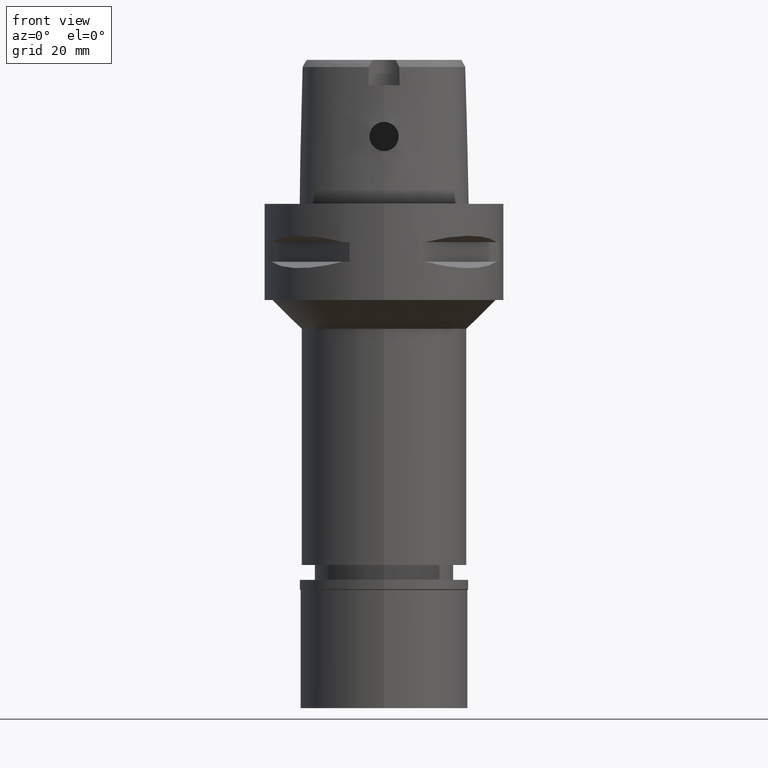
[diagram: clean part render]
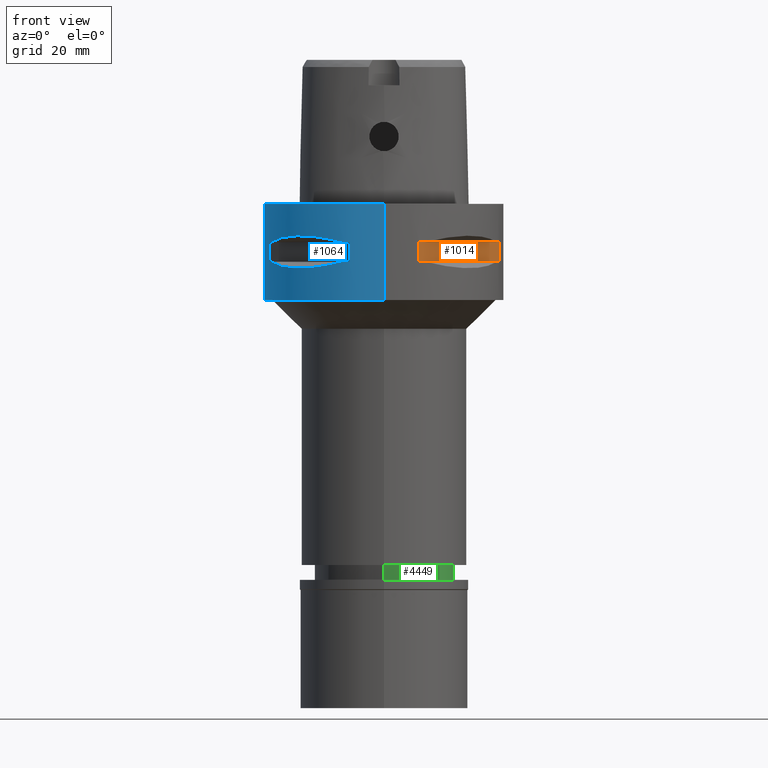
[diagram: same view with three faces highlighted in distinct colors, each labeled with its STEP entity id]
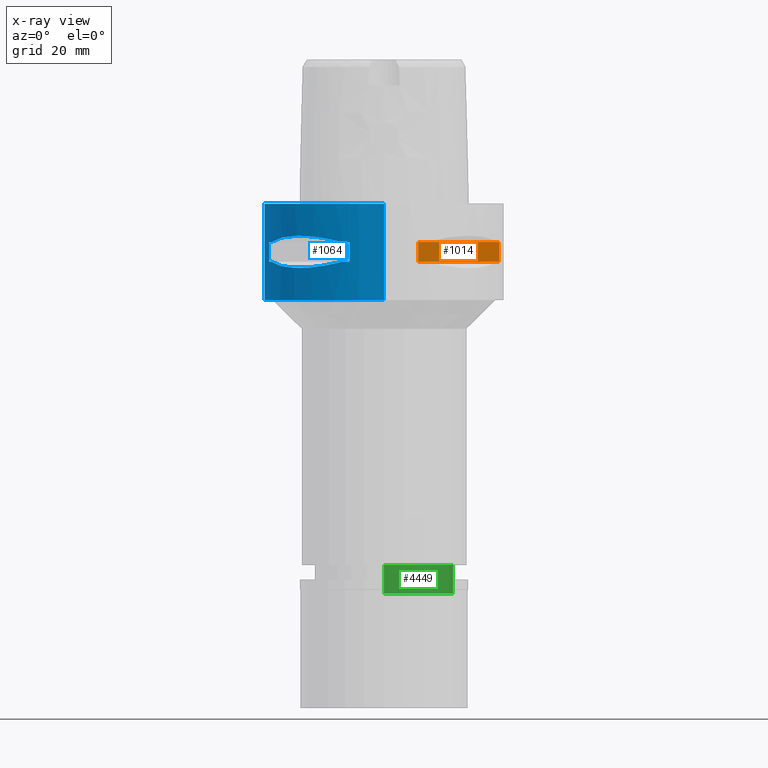
[diagram: x-ray of the same camera — body ghosted, the three highlighted faces saturated]
A machine part, front view with three faces highlighted in distinct colors.
The next image is the same camera in x-ray (body ghosted, the three faces saturated) — at least one of them is partly hidden behind the body in this view.
Their STEP definitions:

[orange] entity #1014 — the highlighted planar face has unit normal (-0.7071, 0.7071, 0).
#19 = DIRECTION ( 'NONE',  ( 0.0000000000000000000, 0.0000000000000000000, 1.000000000000000000 ) ) ;
#159 = AXIS2_PLACEMENT_3D ( 'NONE', #3375, #425, #19 ) ;
#295 = DIRECTION ( 'NONE',  ( 0.0000000000000000000, 0.0000000000000000000, -1.000000000000000000 ) ) ;
#352 = EDGE_CURVE ( 'NONE', #3351, #3797, #879, .T. ) ;
#376 = PLANE ( 'NONE',  #159 ) ;
#399 = FACE_OUTER_BOUND ( 'NONE', #3069, .T. ) ;
#425 = DIRECTION ( 'NONE',  ( -0.7071067811865475727, 0.7071067811865475727, 0.0000000000000000000 ) ) ;
#470 = VECTOR ( 'NONE', #3344, 1000.000000000000000 ) ;
#729 = CARTESIAN_POINT ( 'NONE',  ( 23.95277699797999915, -7.159921374230999724, -7.950000000000000178 ) ) ;
#852 = DIRECTION ( 'NONE',  ( 0.7071067811865474617, 0.7071067811865474617, 0.0000000000000000000 ) ) ;
#879 = LINE ( 'NONE', #3498, #2348 ) ;
#999 = CARTESIAN_POINT ( 'NONE',  ( 23.95277699797999915, -7.159921374230999724, -12.05000000000000071 ) ) ;
#1014 = ADVANCED_FACE ( 'NONE', ( #399 ), #376, .F. ) ;
#1768 = ORIENTED_EDGE ( 'NONE', *, *, #4234, .T. ) ;
#2050 = ORIENTED_EDGE ( 'NONE', *, *, #4154, .T. ) ;
#2321 = CARTESIAN_POINT ( 'NONE',  ( 7.159921374235000080, -23.95277699797999915, -7.950000000000000178 ) ) ;
#2348 = VECTOR ( 'NONE', #852, 1000.000000000000114 ) ;
#2385 = CARTESIAN_POINT ( 'NONE',  ( 7.159921374230999724, -23.95277699797999915, -12.05000000000000071 ) ) ;
#2468 = LINE ( 'NONE', #999, #470 ) ;
#2740 = DIRECTION ( 'NONE',  ( 0.7071067811865474617, 0.7071067811865474617, 0.0000000000000000000 ) ) ;
#2833 = VECTOR ( 'NONE', #2740, 1000.000000000000114 ) ;
#2850 = EDGE_CURVE ( 'NONE', #4442, #3491, #4199, .T. ) ;
#2856 = ORIENTED_EDGE ( 'NONE', *, *, #352, .T. ) ;
#2921 = VECTOR ( 'NONE', #295, 1000.000000000000000 ) ;
#3069 = EDGE_LOOP ( 'NONE', ( #3834, #1768, #2856, #2050 ) ) ;
#3344 = DIRECTION ( 'NONE',  ( 0.0000000000000000000, 0.0000000000000000000, 1.000000000000000000 ) ) ;
#3351 = VERTEX_POINT ( 'NONE', #2385 ) ;
#3375 = CARTESIAN_POINT ( 'NONE',  ( 26.16295090389999700, -4.949747468305999654, -7.950000000000000178 ) ) ;
#3491 = VERTEX_POINT ( 'NONE', #729 ) ;
#3498 = CARTESIAN_POINT ( 'NONE',  ( 7.159921374230999724, -23.95277699797999915, -12.05000000000000071 ) ) ;
#3607 = CARTESIAN_POINT ( 'NONE',  ( 7.159921374230999724, -23.95277699797999915, -7.950000000000000178 ) ) ;
#3797 = VERTEX_POINT ( 'NONE', #4230 ) ;
#3834 = ORIENTED_EDGE ( 'NONE', *, *, #2850, .F. ) ;
#3848 = CARTESIAN_POINT ( 'NONE',  ( 7.159921374230999724, -23.95277699797999915, -7.950000000000000178 ) ) ;
#4061 = LINE ( 'NONE', #3607, #2921 ) ;
#4154 = EDGE_CURVE ( 'NONE', #3797, #3491, #2468, .T. ) ;
#4199 = LINE ( 'NONE', #3848, #2833 ) ;
#4230 = CARTESIAN_POINT ( 'NONE',  ( 23.95277699797999915, -7.159921374235000080, -12.05000000000000071 ) ) ;
#4234 = EDGE_CURVE ( 'NONE', #4442, #3351, #4061, .T. ) ;
#4442 = VERTEX_POINT ( 'NONE', #2321 ) ;

[blue] entity #1064 — the highlighted cylindrical surface (partial cylindrical patch) has radius 25 mm, axis along (0, 0, -1).
#18 = DIRECTION ( 'NONE',  ( -0.9581110799190402094, 0.2863968549694120291, 0.0000000000000000000 ) ) ;
#88 = DIRECTION ( 'NONE',  ( 0.0000000000000000000, -1.000000000000000000, 0.0000000000000000000 ) ) ;
#105 = VECTOR ( 'NONE', #4522, 1000.000000000000000 ) ;
#127 = DIRECTION ( 'NONE',  ( 0.0000000000000000000, 0.0000000000000000000, -1.000000000000000000 ) ) ;
#144 = VERTEX_POINT ( 'NONE', #4787 ) ;
#148 = VERTEX_POINT ( 'NONE', #328 ) ;
#180 = VECTOR ( 'NONE', #1177, 1000.000000000000000 ) ;
#206 = CARTESIAN_POINT ( 'NONE',  ( -7.159921374235000080, -23.95277699797999915, -12.05000000000000071 ) ) ;
#249 = CARTESIAN_POINT ( 'NONE',  ( -20.77616787492826944, 13.90573822668830140, -13.10257122103331184 ) ) ;
#279 = CARTESIAN_POINT ( 'NONE',  ( -20.56020460721916265, 14.22535762329778564, -13.14488865845300047 ) ) ;
#283 = CARTESIAN_POINT ( 'NONE',  ( -21.05082155772163333, -13.48572973711064193, -13.04323036965292637 ) ) ;
#305 = ORIENTED_EDGE ( 'NONE', *, *, #1485, .T. ) ;
#328 = CARTESIAN_POINT ( 'NONE',  ( -7.159921374230999724, -23.95277699797999915, -7.950000000000000178 ) ) ;
#349 = CARTESIAN_POINT ( 'NONE',  ( -20.97251445226615019, 13.60713573002994004, -13.06082541678091324 ) ) ;
#353 = ORIENTED_EDGE ( 'NONE', *, *, #3975, .F. ) ;
#357 = EDGE_CURVE ( 'NONE', #1636, #4086, #4311, .T. ) ;
#395 = CARTESIAN_POINT ( 'NONE',  ( -22.00752022560863352, 11.99636231257077057, -7.175618606723545234 ) ) ;
#397 = EDGE_CURVE ( 'NONE', #3716, #1444, #1362, .T. ) ;
#398 = LINE ( 'NONE', #2286, #105 ) ;
#412 = CIRCLE ( 'NONE', #2218, 24.99999999999999645 ) ;
#483 = CARTESIAN_POINT ( 'NONE',  ( 0.0000000000000000000, 1.282205198706999922E-14, -12.05000000000000071 ) ) ;
#490 = CARTESIAN_POINT ( 'NONE',  ( 0.0000000000000000000, 1.282205198706999922E-14, 4.700000000000000178 ) ) ;
#527 = CARTESIAN_POINT ( 'NONE',  ( -16.43106916206559021, 18.92421359260760028, -13.37747608848198588 ) ) ;
#532 = CARTESIAN_POINT ( 'NONE',  ( -23.45715880140000209, -8.646484890756999775, -12.05000000000000071 ) ) ;
#555 = CARTESIAN_POINT ( 'NONE',  ( -13.53433973752450470, 21.01958685664151361, -13.05032380590220775 ) ) ;
#608 = CARTESIAN_POINT ( 'NONE',  ( -21.09754014382098930, -13.41274673326371136, -13.03250796600744721 ) ) ;
#620 = DIRECTION ( 'NONE',  ( 0.0000000000000000000, 0.0000000000000000000, 1.000000000000000000 ) ) ;
#634 = CARTESIAN_POINT ( 'NONE',  ( -13.60713573003076249, -20.97251445226584110, -13.06082541678113174 ) ) ;
#664 = CARTESIAN_POINT ( 'NONE',  ( -13.74471461761470792, -20.88268233906292437, -13.08031795579734791 ) ) ;
#674 = ORIENTED_EDGE ( 'NONE', *, *, #397, .T. ) ;
#679 = VERTEX_POINT ( 'NONE', #1922 ) ;
#699 = AXIS2_PLACEMENT_3D ( 'NONE', #3840, #2284, #1183 ) ;
#714 = CIRCLE ( 'NONE', #2995, 25.00000000000000000 ) ;
#719 = CARTESIAN_POINT ( 'NONE',  ( -23.95277699797999915, 7.159921374230999724, -7.950000000000000178 ) ) ;
#721 = DIRECTION ( 'NONE',  ( 0.0000000000000000000, 0.0000000000000000000, 1.000000000000000000 ) ) ;
#773 = DIRECTION ( 'NONE',  ( 0.0000000000000000000, 0.0000000000000000000, 1.000000000000000000 ) ) ;
#786 = CIRCLE ( 'NONE', #3383, 24.99999999999999645 ) ;
#788 = CARTESIAN_POINT ( 'NONE',  ( -8.646484890751999330, -23.45715880140000209, -7.949999999998999201 ) ) ;
#790 = DIRECTION ( 'NONE',  ( -0.9382863520558295534, 0.3458593956303108730, 0.0000000000000000000 ) ) ;
#821 = ORIENTED_EDGE ( 'NONE', *, *, #3898, .T. ) ;
#823 = CARTESIAN_POINT ( 'NONE',  ( -8.646484890751999330, 23.45715880140000209, -7.949999999998999201 ) ) ;
#856 = DIRECTION ( 'NONE',  ( 0.0000000000000000000, 0.0000000000000000000, -1.000000000000000000 ) ) ;
#864 = EDGE_CURVE ( 'NONE', #2124, #4084, #2219, .T. ) ;
#906 = CARTESIAN_POINT ( 'NONE',  ( 0.0000000000000000000, 1.282205198706999922E-14, -20.00000000000000000 ) ) ;
#983 = CARTESIAN_POINT ( 'NONE',  ( -13.67544437571023153, -20.92801700160370970, -13.07054629644085786 ) ) ;
#991 = B_SPLINE_CURVE_WITH_KNOTS ( 'NONE', 3,
 ( #2796, #4651, #2109, #3168, #1293, #3613, #2012, #3519, #555, #3140, #2406, #527, #2031, #3544, #3936, #279, #249, #2183, #1744, #1453, #349, #4808, #2494, #1083 ),
 .UNSPECIFIED., .F., .F.,
 ( 4, 1, 1, 1, 1, 1, 2, 2, 2, 1, 1, 1, 1, 1, 2, 2, 4 ),
 ( 0.0000000000000000000, 0.1249999999999998612, 0.1874999999999998890, 0.2187499999999998057, 0.2343749999999998057, 0.2421875000000000000, 0.2460937500000001110, 0.2500000000000002220, 0.5000000000000009992, 0.6250000000000014433, 0.6875000000000015543, 0.7187500000000016653, 0.7343750000000015543, 0.7421875000000013323, 0.7460937500000013323, 0.7500000000000012212, 1.000000000000000000 ),
 .UNSPECIFIED. ) ;
#1011 = CARTESIAN_POINT ( 'NONE',  ( 0.0000000000000000000, 1.282205198706999922E-14, -7.950000000000000178 ) ) ;
#1013 = CARTESIAN_POINT ( 'NONE',  ( -18.92421359266165126, -16.43106916201666934, -13.37747608848409264 ) ) ;
#1038 = VERTEX_POINT ( 'NONE', #1511 ) ;
#1055 = ORIENTED_EDGE ( 'NONE', *, *, #1794, .T. ) ;
#1064 = ADVANCED_FACE ( 'NONE', ( #3008, #3428, #2387 ), #4236, .T. ) ;
#1083 = CARTESIAN_POINT ( 'NONE',  ( -23.45715880140000209, 8.646484890751999330, -12.05000000000000071 ) ) ;
#1093 = CARTESIAN_POINT ( 'NONE',  ( 0.0000000000000000000, 1.282205198706999922E-14, -7.950000000000000178 ) ) ;
#1116 = CARTESIAN_POINT ( 'NONE',  ( -11.99636231264436859, -22.00752022556849141, -7.175618606703324964 ) ) ;
#1140 = CARTESIAN_POINT ( 'NONE',  ( -16.42437865151179111, -18.93096040781557221, -6.622496303226940384 ) ) ;
#1177 = DIRECTION ( 'NONE',  ( 0.0000000000000000000, 0.0000000000000000000, -1.000000000000000000 ) ) ;
#1183 = DIRECTION ( 'NONE',  ( -0.3458593956303108730, 0.9382863520558295534, 0.0000000000000000000 ) ) ;
#1216 = CARTESIAN_POINT ( 'NONE',  ( 0.0000000000000000000, 25.00000000000000000, 0.0000000000000000000 ) ) ;
#1293 = CARTESIAN_POINT ( 'NONE',  ( -12.89853354821533493, 21.41803043592779687, -12.95342092614030882 ) ) ;
#1296 = CARTESIAN_POINT ( 'NONE',  ( -23.13678124605149833, -9.515641234297431694, -12.27403800212630891 ) ) ;
#1319 = ORIENTED_EDGE ( 'NONE', *, *, #3041, .T. ) ;
#1333 = VECTOR ( 'NONE', #2958, 1000.000000000000000 ) ;
#1343 = VERTEX_POINT ( 'NONE', #4801 ) ;
#1353 = CARTESIAN_POINT ( 'NONE',  ( -14.22535762327708397, -20.56020460723788901, -13.14488865845220289 ) ) ;
#1362 = B_SPLINE_CURVE_WITH_KNOTS ( 'NONE', 3,
 ( #2384, #2311, #2679, #1581, #3076, #1961, #3472, #395, #1894, #3402 ),
 .UNSPECIFIED., .F., .F.,
 ( 4, 2, 2, 2, 4 ),
 ( 0.0000000000000000000, 0.2500000000000000000, 0.5000000000000000000, 0.7500000000000000000, 1.000000000000000000 ),
 .UNSPECIFIED. ) ;
#1377 = CARTESIAN_POINT ( 'NONE',  ( -16.07509500017260251, -19.18226349640280048, -13.33749867751863327 ) ) ;
#1434 = CARTESIAN_POINT ( 'NONE',  ( 0.0000000000000000000, 1.282205198706999922E-14, -12.05000000000000071 ) ) ;
#1444 = VERTEX_POINT ( 'NONE', #2665 ) ;
#1445 = LINE ( 'NONE', #4007, #3941 ) ;
#1453 = CARTESIAN_POINT ( 'NONE',  ( -20.95817024473769052, 13.62920640916783910, -13.06397973560678594 ) ) ;
#1456 = CARTESIAN_POINT ( 'NONE',  ( -23.95277699797999915, 7.159921374230999724, -12.05000000000000071 ) ) ;
#1485 = EDGE_CURVE ( 'NONE', #4247, #3716, #786, .T. ) ;
#1511 = CARTESIAN_POINT ( 'NONE',  ( 0.0000000000000000000, -25.00000000000000000, 0.0000000000000000000 ) ) ;
#1534 = ORIENTED_EDGE ( 'NONE', *, *, #3153, .F. ) ;
#1540 = CARTESIAN_POINT ( 'NONE',  ( 0.0000000000000000000, 25.00000000000000000, 0.0000000000000000000 ) ) ;
#1544 = CARTESIAN_POINT ( 'NONE',  ( -18.93096040781556866, -16.42437865151179821, -6.622505547253060953 ) ) ;
#1555 = CARTESIAN_POINT ( 'NONE',  ( 0.0000000000000000000, 1.282205198706999922E-14, -12.05000000000000071 ) ) ;
#1577 = DIRECTION ( 'NONE',  ( -0.9382863520558295534, -0.3458593956303108730, 0.0000000000000000000 ) ) ;
#1581 = CARTESIAN_POINT ( 'NONE',  ( -15.02693924553806504, 20.06077645870042403, -6.733132781285451784 ) ) ;
#1622 = DIRECTION ( 'NONE',  ( 0.0000000000000000000, -1.000000000000000000, 0.0000000000000000000 ) ) ;
#1623 = DIRECTION ( 'NONE',  ( 0.0000000000000000000, 1.000000000000000000, 0.0000000000000000000 ) ) ;
#1636 = VERTEX_POINT ( 'NONE', #4519 ) ;
#1654 = VERTEX_POINT ( 'NONE', #3330 ) ;
#1666 = EDGE_CURVE ( 'NONE', #144, #4701, #4809, .T. ) ;
#1685 = CARTESIAN_POINT ( 'NONE',  ( -23.45715880140000209, 8.646484890751999330, -12.05000000000000071 ) ) ;
#1708 = DIRECTION ( 'NONE',  ( -0.2863968549694120291, -0.9581110799190402094, 0.0000000000000000000 ) ) ;
#1744 = CARTESIAN_POINT ( 'NONE',  ( -20.92801700160071476, 13.67544437571354088, -13.07054629644098043 ) ) ;
#1774 = CARTESIAN_POINT ( 'NONE',  ( -21.00321793043546847, -13.55971422200801157, -13.05400030967367364 ) ) ;
#1794 = EDGE_CURVE ( 'NONE', #1038, #2124, #2590, .T. ) ;
#1826 = VECTOR ( 'NONE', #127, 1000.000000000000000 ) ;
#1827 = DIRECTION ( 'NONE',  ( 0.0000000000000000000, 0.0000000000000000000, -1.000000000000000000 ) ) ;
#1848 = ORIENTED_EDGE ( 'NONE', *, *, #864, .T. ) ;
#1889 = AXIS2_PLACEMENT_3D ( 'NONE', #1011, #4402, #4765 ) ;
#1894 = CARTESIAN_POINT ( 'NONE',  ( -22.82437128824117778, 10.36318218117757084, -7.507495686413086844 ) ) ;
#1904 = CARTESIAN_POINT ( 'NONE',  ( -23.45715880140000209, -8.646484890751999330, -7.949999999998999201 ) ) ;
#1922 = CARTESIAN_POINT ( 'NONE',  ( -23.95277699797999915, -7.159921374230999724, -12.05000000000000071 ) ) ;
#1956 = LINE ( 'NONE', #2331, #180 ) ;
#1961 = CARTESIAN_POINT ( 'NONE',  ( -18.93096040785499667, 16.42437865147239506, -6.622496303240421156 ) ) ;
#1975 = EDGE_CURVE ( 'NONE', #1654, #148, #3309, .T. ) ;
#1993 = CARTESIAN_POINT ( 'NONE',  ( -23.95277699797999915, -7.159921374235000080, -7.950000000000000178 ) ) ;
#2005 = CARTESIAN_POINT ( 'NONE',  ( 0.0000000000000000000, 1.282205198706999922E-14, -7.950000000000000178 ) ) ;
#2012 = CARTESIAN_POINT ( 'NONE',  ( -13.41274673326356393, 21.09754014382244236, -13.03250796600796413 ) ) ;
#2031 = CARTESIAN_POINT ( 'NONE',  ( -18.30096971346384294, 17.05439749819285566, -13.37751056790112258 ) ) ;
#2097 = VERTEX_POINT ( 'NONE', #2656 ) ;
#2109 = CARTESIAN_POINT ( 'NONE',  ( -10.78455809744490068, 22.58788056562654489, -12.56798337782910480 ) ) ;
#2112 = CARTESIAN_POINT ( 'NONE',  ( -13.90573822667720982, -20.77616787493829875, -13.10257122103289262 ) ) ;
#2124 = VERTEX_POINT ( 'NONE', #1216 ) ;
#2133 = ORIENTED_EDGE ( 'NONE', *, *, #2506, .T. ) ;
#2141 = CARTESIAN_POINT ( 'NONE',  ( -12.03062603421342125, -21.99328990740118428, -12.83394786307044555 ) ) ;
#2164 = CARTESIAN_POINT ( 'NONE',  ( -21.01958685664054372, -13.53433973752400377, -13.05032380590162511 ) ) ;
#2183 = CARTESIAN_POINT ( 'NONE',  ( -20.88268233905774096, 13.74471461762043489, -13.08031795579756462 ) ) ;
#2189 = DIRECTION ( 'NONE',  ( 0.0000000000000000000, 0.0000000000000000000, -1.000000000000000000 ) ) ;
#2215 = CIRCLE ( 'NONE', #3866, 25.00000000000001066 ) ;
#2218 = AXIS2_PLACEMENT_3D ( 'NONE', #483, #3161, #1708 ) ;
#2219 = LINE ( 'NONE', #1540, #2276 ) ;
#2227 = ORIENTED_EDGE ( 'NONE', *, *, #3737, .F. ) ;
#2254 = VERTEX_POINT ( 'NONE', #1993 ) ;
#2276 = VECTOR ( 'NONE', #1827, 1000.000000000000000 ) ;
#2284 = DIRECTION ( 'NONE',  ( 0.0000000000000000000, 0.0000000000000000000, -1.000000000000000000 ) ) ;
#2285 = EDGE_CURVE ( 'NONE', #4084, #2097, #714, .T. ) ;
#2286 = CARTESIAN_POINT ( 'NONE',  ( -23.95277699797999915, -7.159921374230999724, -7.950000000000000178 ) ) ;
#2291 = CARTESIAN_POINT ( 'NONE',  ( -10.36318218122984902, -22.82437128822189010, -7.507495686399605184 ) ) ;
#2303 = VERTEX_POINT ( 'NONE', #206 ) ;
#2311 = CARTESIAN_POINT ( 'NONE',  ( -10.36314631865473856, 22.82438450743641667, -7.507504930511911923 ) ) ;
#2331 = CARTESIAN_POINT ( 'NONE',  ( -7.159921374230999724, 23.95277699797999915, -7.950000000000000178 ) ) ;
#2383 = ORIENTED_EDGE ( 'NONE', *, *, #3754, .T. ) ;
#2384 = CARTESIAN_POINT ( 'NONE',  ( -8.646484890751999330, 23.45715880140000209, -7.949999999998999201 ) ) ;
#2387 = FACE_BOUND ( 'NONE', #2599, .T. ) ;
#2388 = EDGE_CURVE ( 'NONE', #4035, #1343, #4571, .T. ) ;
#2406 = CARTESIAN_POINT ( 'NONE',  ( -15.06560254765459739, 20.02826730455512561, -13.27075471794606543 ) ) ;
#2494 = CARTESIAN_POINT ( 'NONE',  ( -22.81626994450270374, 10.38516041961251979, -12.49816953212508963 ) ) ;
#2499 = CARTESIAN_POINT ( 'NONE',  ( -20.02826730454556170, -15.06560254766883666, -13.27075471794798744 ) ) ;
#2506 = EDGE_CURVE ( 'NONE', #1444, #4701, #2215, .T. ) ;
#2532 = CARTESIAN_POINT ( 'NONE',  ( -10.38516041956038016, -22.81626994452193458, -12.49816953211165860 ) ) ;
#2567 = ORIENTED_EDGE ( 'NONE', *, *, #3462, .F. ) ;
#2590 = CIRCLE ( 'NONE', #4321, 25.00000000000000000 ) ;
#2599 = EDGE_LOOP ( 'NONE', ( #4322, #2772, #821, #3993, #2383, #1534, #2787, #3158 ) ) ;
#2656 = CARTESIAN_POINT ( 'NONE',  ( 0.0000000000000000000, -25.00000000000000000, -20.00000000000000000 ) ) ;
#2665 = CARTESIAN_POINT ( 'NONE',  ( -23.45715880140000209, 8.646484890751999330, -7.949999999998999201 ) ) ;
#2673 = CIRCLE ( 'NONE', #3696, 25.00000000000001066 ) ;
#2679 = CARTESIAN_POINT ( 'NONE',  ( -11.99631184317912869, 22.00754773654352903, -7.175632472871786405 ) ) ;
#2772 = ORIENTED_EDGE ( 'NONE', *, *, #4220, .F. ) ;
#2787 = ORIENTED_EDGE ( 'NONE', *, *, #3678, .T. ) ;
#2796 = CARTESIAN_POINT ( 'NONE',  ( -8.646484890756999775, 23.45715880140000209, -12.05000000000000071 ) ) ;
#2840 = LINE ( 'NONE', #3906, #1826 ) ;
#2882 = CARTESIAN_POINT ( 'NONE',  ( -8.646484890751999330, -23.45715880140000209, -12.05000000000000071 ) ) ;
#2949 = ORIENTED_EDGE ( 'NONE', *, *, #2285, .T. ) ;
#2950 = CARTESIAN_POINT ( 'NONE',  ( -7.159921374235000080, 23.95277699797999915, -7.950000000000000178 ) ) ;
#2958 = DIRECTION ( 'NONE',  ( 0.0000000000000000000, 0.0000000000000000000, 1.000000000000000000 ) ) ;
#2995 = AXIS2_PLACEMENT_3D ( 'NONE', #906, #3501, #1623 ) ;
#3008 = FACE_OUTER_BOUND ( 'NONE', #3070, .T. ) ;
#3041 = EDGE_CURVE ( 'NONE', #144, #4078, #3475, .T. ) ;
#3070 = EDGE_LOOP ( 'NONE', ( #2949, #353, #1055, #1848 ) ) ;
#3076 = CARTESIAN_POINT ( 'NONE',  ( -16.42437865147239506, 18.93096040785500733, -6.622505547239580181 ) ) ;
#3112 = ORIENTED_EDGE ( 'NONE', *, *, #1666, .F. ) ;
#3120 = DIRECTION ( 'NONE',  ( 0.0000000000000000000, 0.0000000000000000000, -1.000000000000000000 ) ) ;
#3134 = CARTESIAN_POINT ( 'NONE',  ( -23.45715880140000209, -8.646484890756999775, -12.05000000000000071 ) ) ;
#3140 = CARTESIAN_POINT ( 'NONE',  ( -13.55971422200900811, 21.00321793043610441, -13.05400030967432023 ) ) ;
#3153 = EDGE_CURVE ( 'NONE', #2254, #679, #398, .T. ) ;
#3158 = ORIENTED_EDGE ( 'NONE', *, *, #4681, .T. ) ;
#3161 = DIRECTION ( 'NONE',  ( 0.0000000000000000000, 0.0000000000000000000, -1.000000000000000000 ) ) ;
#3168 = CARTESIAN_POINT ( 'NONE',  ( -12.20403021317230241, 21.82791133048917587, -12.83722430138601212 ) ) ;
#3182 = CARTESIAN_POINT ( 'NONE',  ( 0.0000000000000000000, 25.00000000000000000, -20.00000000000000000 ) ) ;
#3276 = CARTESIAN_POINT ( 'NONE',  ( -17.05439749816580886, -18.30096971348830692, -13.37751056790007809 ) ) ;
#3299 = EDGE_LOOP ( 'NONE', ( #2133, #3112, #1319, #2567, #3922, #2227, #305, #674 ) ) ;
#3309 = CIRCLE ( 'NONE', #1889, 25.00000000000001066 ) ;
#3324 = CIRCLE ( 'NONE', #4550, 24.99999999999999645 ) ;
#3330 = CARTESIAN_POINT ( 'NONE',  ( -8.646484890751999330, -23.45715880140000209, -7.949999999998999201 ) ) ;
#3340 = CARTESIAN_POINT ( 'NONE',  ( -20.06077645874711379, -15.02693924547571847, -6.733132781305682713 ) ) ;
#3383 = AXIS2_PLACEMENT_3D ( 'NONE', #2005, #3513, #4666 ) ;
#3394 = CARTESIAN_POINT ( 'NONE',  ( 0.0000000000000000000, 1.282205198706999922E-14, -7.950000000000000178 ) ) ;
#3402 = CARTESIAN_POINT ( 'NONE',  ( -23.45715880140000209, 8.646484890751999330, -7.949999999998999201 ) ) ;
#3428 = FACE_BOUND ( 'NONE', #3299, .T. ) ;
#3462 = EDGE_CURVE ( 'NONE', #1636, #4078, #991, .T. ) ;
#3472 = CARTESIAN_POINT ( 'NONE',  ( -20.06074199769975763, 15.02698525043419231, -6.733118915137212390 ) ) ;
#3475 = CIRCLE ( 'NONE', #4485, 24.99999999999999645 ) ;
#3501 = DIRECTION ( 'NONE',  ( 0.0000000000000000000, 0.0000000000000000000, 1.000000000000000000 ) ) ;
#3513 = DIRECTION ( 'NONE',  ( 0.0000000000000000000, 0.0000000000000000000, 1.000000000000000000 ) ) ;
#3519 = CARTESIAN_POINT ( 'NONE',  ( -13.48572973711087464, 21.05082155772280572, -13.04323036965348237 ) ) ;
#3534 = CARTESIAN_POINT ( 'NONE',  ( -23.45715880140000209, -8.646484890751999330, -7.949999999998999201 ) ) ;
#3544 = CARTESIAN_POINT ( 'NONE',  ( -19.18226349636000450, 16.07509500021993532, -13.33749867752047003 ) ) ;
#3593 = CARTESIAN_POINT ( 'NONE',  ( -21.82791133048418786, -12.20403021317722292, -12.83722430138600323 ) ) ;
#3613 = CARTESIAN_POINT ( 'NONE',  ( -13.24197703503168100, 21.20561591939891599, -13.00691327926142193 ) ) ;
#3646 = CARTESIAN_POINT ( 'NONE',  ( -13.62920640916616577, -20.95817024473919687, -13.06397973560672554 ) ) ;
#3678 = EDGE_CURVE ( 'NONE', #2254, #4118, #3324, .T. ) ;
#3696 = AXIS2_PLACEMENT_3D ( 'NONE', #1555, #3793, #1577 ) ;
#3716 = VERTEX_POINT ( 'NONE', #823 ) ;
#3729 = CARTESIAN_POINT ( 'NONE',  ( -15.02698525050126754, -20.06074199764948673, -6.733118915116992120 ) ) ;
#3737 = EDGE_CURVE ( 'NONE', #4247, #4086, #1956, .T. ) ;
#3754 = EDGE_CURVE ( 'NONE', #4035, #679, #2673, .T. ) ;
#3793 = DIRECTION ( 'NONE',  ( 0.0000000000000000000, 0.0000000000000000000, -1.000000000000000000 ) ) ;
#3840 = CARTESIAN_POINT ( 'NONE',  ( 0.0000000000000000000, 1.282205198706999922E-14, -12.05000000000000071 ) ) ;
#3845 = B_SPLINE_CURVE_WITH_KNOTS ( 'NONE', 3,
 ( #1904, #4145, #4125, #3340, #1544, #1140, #3729, #1116, #2291, #788 ),
 .UNSPECIFIED., .F., .F.,
 ( 4, 2, 2, 2, 4 ),
 ( 0.0000000000000000000, 0.2500000000000001665, 0.5000000000000003331, 0.7500000000000001110, 1.000000000000000000 ),
 .UNSPECIFIED. ) ;
#3852 = AXIS2_PLACEMENT_3D ( 'NONE', #490, #3120, #88 ) ;
#3866 = AXIS2_PLACEMENT_3D ( 'NONE', #1093, #721, #790 ) ;
#3884 = CARTESIAN_POINT ( 'NONE',  ( -7.159921374230999724, 23.95277699797999915, -12.05000000000000071 ) ) ;
#3898 = EDGE_CURVE ( 'NONE', #2303, #1343, #412, .T. ) ;
#3906 = CARTESIAN_POINT ( 'NONE',  ( 0.0000000000000000000, -25.00000000000000000, 0.0000000000000000000 ) ) ;
#3922 = ORIENTED_EDGE ( 'NONE', *, *, #357, .T. ) ;
#3936 = CARTESIAN_POINT ( 'NONE',  ( -20.11654071400031896, 14.85488513041178926, -13.22076716108514383 ) ) ;
#3941 = VECTOR ( 'NONE', #620, 1000.000000000000000 ) ;
#3970 = CARTESIAN_POINT ( 'NONE',  ( -22.58788056562029922, -10.78455809745187111, -12.56798337782941744 ) ) ;
#3975 = EDGE_CURVE ( 'NONE', #1038, #2097, #2840, .T. ) ;
#3993 = ORIENTED_EDGE ( 'NONE', *, *, #2388, .F. ) ;
#4007 = CARTESIAN_POINT ( 'NONE',  ( -7.159921374230999724, -23.95277699797999915, -12.05000000000000071 ) ) ;
#4019 = CARTESIAN_POINT ( 'NONE',  ( -14.85488513037629943, -20.11654071403241417, -13.22076716108376360 ) ) ;
#4035 = VERTEX_POINT ( 'NONE', #3134 ) ;
#4078 = VERTEX_POINT ( 'NONE', #1685 ) ;
#4084 = VERTEX_POINT ( 'NONE', #3182 ) ;
#4086 = VERTEX_POINT ( 'NONE', #3884 ) ;
#4118 = VERTEX_POINT ( 'NONE', #3534 ) ;
#4125 = CARTESIAN_POINT ( 'NONE',  ( -22.00754773658079344, -11.99631184311071586, -7.175632472892016445 ) ) ;
#4145 = CARTESIAN_POINT ( 'NONE',  ( -22.82438450745431879, -10.36314631860612856, -7.507504930525399800 ) ) ;
#4157 = DIRECTION ( 'NONE',  ( -0.9581110799190402094, -0.2863968549694120291, 0.0000000000000000000 ) ) ;
#4220 = EDGE_CURVE ( 'NONE', #2303, #148, #1445, .T. ) ;
#4236 = CYLINDRICAL_SURFACE ( 'NONE', #3852, 25.00000000000000000 ) ;
#4247 = VERTEX_POINT ( 'NONE', #2950 ) ;
#4311 = CIRCLE ( 'NONE', #699, 25.00000000000001066 ) ;
#4321 = AXIS2_PLACEMENT_3D ( 'NONE', #4586, #856, #1622 ) ;
#4322 = ORIENTED_EDGE ( 'NONE', *, *, #1975, .T. ) ;
#4372 = CARTESIAN_POINT ( 'NONE',  ( -21.20561591939681989, -13.24197703503267753, -13.00691327926098140 ) ) ;
#4402 = DIRECTION ( 'NONE',  ( 0.0000000000000000000, 0.0000000000000000000, 1.000000000000000000 ) ) ;
#4485 = AXIS2_PLACEMENT_3D ( 'NONE', #1434, #2189, #18 ) ;
#4519 = CARTESIAN_POINT ( 'NONE',  ( -8.646484890756999775, 23.45715880140000209, -12.05000000000000071 ) ) ;
#4522 = DIRECTION ( 'NONE',  ( 0.0000000000000000000, 0.0000000000000000000, -1.000000000000000000 ) ) ;
#4550 = AXIS2_PLACEMENT_3D ( 'NONE', #3394, #773, #4157 ) ;
#4571 = B_SPLINE_CURVE_WITH_KNOTS ( 'NONE', 3,
 ( #532, #1296, #3970, #3593, #4735, #4372, #608, #283, #2164, #1774, #2499, #1013, #3276, #1377, #4019, #1353, #2112, #664, #983, #3646, #634, #2141, #2532, #2882 ),
 .UNSPECIFIED., .F., .F.,
 ( 4, 1, 1, 1, 1, 1, 2, 2, 2, 1, 1, 1, 1, 1, 2, 2, 4 ),
 ( 0.0000000000000000000, 0.1249999999999980294, 0.1874999999999968636, 0.2187499999999962530, 0.2343749999999959754, 0.2421874999999957812, 0.2460937499999955869, 0.2499999999999953926, 0.5000000000000005551, 0.6250000000000031086, 0.6875000000000044409, 0.7187500000000051070, 0.7343750000000054401, 0.7421875000000055511, 0.7460937500000055511, 0.7500000000000055511, 1.000000000000000000 ),
 .UNSPECIFIED. ) ;
#4586 = CARTESIAN_POINT ( 'NONE',  ( 0.0000000000000000000, 1.282205198706999922E-14, 0.0000000000000000000 ) ) ;
#4651 = CARTESIAN_POINT ( 'NONE',  ( -9.515641234293386930, 23.13678124605501196, -12.27403800212607266 ) ) ;
#4666 = DIRECTION ( 'NONE',  ( -0.2863968549694120291, 0.9581110799190402094, 0.0000000000000000000 ) ) ;
#4681 = EDGE_CURVE ( 'NONE', #4118, #1654, #3845, .T. ) ;
#4701 = VERTEX_POINT ( 'NONE', #719 ) ;
#4735 = CARTESIAN_POINT ( 'NONE',  ( -21.41803043592453548, -12.89853354821786446, -12.95342092614003171 ) ) ;
#4765 = DIRECTION ( 'NONE',  ( -0.3458593956303108730, -0.9382863520558295534, 0.0000000000000000000 ) ) ;
#4787 = CARTESIAN_POINT ( 'NONE',  ( -23.95277699797999915, 7.159921374235000080, -12.05000000000000071 ) ) ;
#4801 = CARTESIAN_POINT ( 'NONE',  ( -8.646484890751999330, -23.45715880140000209, -12.05000000000000071 ) ) ;
#4808 = CARTESIAN_POINT ( 'NONE',  ( -21.99328990738197476, 12.03062603426555022, -12.83394786308387125 ) ) ;
#4809 = LINE ( 'NONE', #1456, #1333 ) ;

[green] entity #4449 — the highlighted cylindrical surface (partial cylindrical patch) has radius 14.5 mm, axis along (0, 0, -1).
#98 = CARTESIAN_POINT ( 'NONE',  ( 0.0000000000000000000, 1.282205198706999922E-14, 4.700000000000000178 ) ) ;
#120 = EDGE_CURVE ( 'NONE', #2798, #3180, #2980, .T. ) ;
#438 = EDGE_CURVE ( 'NONE', #2798, #3200, #4468, .T. ) ;
#476 = AXIS2_PLACEMENT_3D ( 'NONE', #98, #1590, #2249 ) ;
#489 = CARTESIAN_POINT ( 'NONE',  ( 0.0000000000000000000, 1.282205198706999922E-14, -81.19999999999998863 ) ) ;
#665 = CARTESIAN_POINT ( 'NONE',  ( 0.0000000000000000000, 14.50000000000000000, -75.20000000000000284 ) ) ;
#716 = CIRCLE ( 'NONE', #1194, 14.50000000000000000 ) ;
#745 = FACE_OUTER_BOUND ( 'NONE', #3533, .T. ) ;
#833 = DIRECTION ( 'NONE',  ( 0.0000000000000000000, 0.0000000000000000000, -1.000000000000000000 ) ) ;
#1019 = VECTOR ( 'NONE', #2216, 1000.000000000000000 ) ;
#1157 = DIRECTION ( 'NONE',  ( 0.0000000000000000000, 0.0000000000000000000, 1.000000000000000000 ) ) ;
#1163 = CARTESIAN_POINT ( 'NONE',  ( 0.0000000000000000000, 14.50000000000000000, -75.20000000000000284 ) ) ;
#1194 = AXIS2_PLACEMENT_3D ( 'NONE', #489, #1157, #2653 ) ;
#1590 = DIRECTION ( 'NONE',  ( 0.0000000000000000000, 0.0000000000000000000, -1.000000000000000000 ) ) ;
#1769 = CARTESIAN_POINT ( 'NONE',  ( 0.0000000000000000000, 1.282205198706999922E-14, -75.20000000000000284 ) ) ;
#1800 = ORIENTED_EDGE ( 'NONE', *, *, #120, .F. ) ;
#2071 = EDGE_CURVE ( 'NONE', #3200, #3662, #4569, .T. ) ;
#2216 = DIRECTION ( 'NONE',  ( 0.0000000000000000000, 0.0000000000000000000, -1.000000000000000000 ) ) ;
#2249 = DIRECTION ( 'NONE',  ( 0.0000000000000000000, -1.000000000000000000, 0.0000000000000000000 ) ) ;
#2261 = CARTESIAN_POINT ( 'NONE',  ( 0.0000000000000000000, -14.50000000000000000, -75.20000000000000284 ) ) ;
#2296 = DIRECTION ( 'NONE',  ( 0.0000000000000000000, 0.0000000000000000000, -1.000000000000000000 ) ) ;
#2546 = ORIENTED_EDGE ( 'NONE', *, *, #3197, .T. ) ;
#2653 = DIRECTION ( 'NONE',  ( 0.0000000000000000000, -1.000000000000000000, 0.0000000000000000000 ) ) ;
#2680 = VECTOR ( 'NONE', #833, 1000.000000000000000 ) ;
#2798 = VERTEX_POINT ( 'NONE', #1163 ) ;
#2980 = LINE ( 'NONE', #665, #1019 ) ;
#3063 = AXIS2_PLACEMENT_3D ( 'NONE', #1769, #2296, #4481 ) ;
#3077 = CARTESIAN_POINT ( 'NONE',  ( 0.0000000000000000000, 14.50000000000000000, -81.19999999999998863 ) ) ;
#3137 = ORIENTED_EDGE ( 'NONE', *, *, #2071, .T. ) ;
#3180 = VERTEX_POINT ( 'NONE', #3077 ) ;
#3197 = EDGE_CURVE ( 'NONE', #3662, #3180, #716, .T. ) ;
#3200 = VERTEX_POINT ( 'NONE', #4162 ) ;
#3457 = CYLINDRICAL_SURFACE ( 'NONE', #476, 14.50000000000000000 ) ;
#3533 = EDGE_LOOP ( 'NONE', ( #4206, #3137, #2546, #1800 ) ) ;
#3662 = VERTEX_POINT ( 'NONE', #4582 ) ;
#4162 = CARTESIAN_POINT ( 'NONE',  ( 0.0000000000000000000, -14.50000000000000000, -75.20000000000000284 ) ) ;
#4206 = ORIENTED_EDGE ( 'NONE', *, *, #438, .T. ) ;
#4449 = ADVANCED_FACE ( 'NONE', ( #745 ), #3457, .T. ) ;
#4468 = CIRCLE ( 'NONE', #3063, 14.50000000000000000 ) ;
#4481 = DIRECTION ( 'NONE',  ( 0.0000000000000000000, 1.000000000000000000, 0.0000000000000000000 ) ) ;
#4569 = LINE ( 'NONE', #2261, #2680 ) ;
#4582 = CARTESIAN_POINT ( 'NONE',  ( 0.0000000000000000000, -14.50000000000000000, -81.19999999999998863 ) ) ;